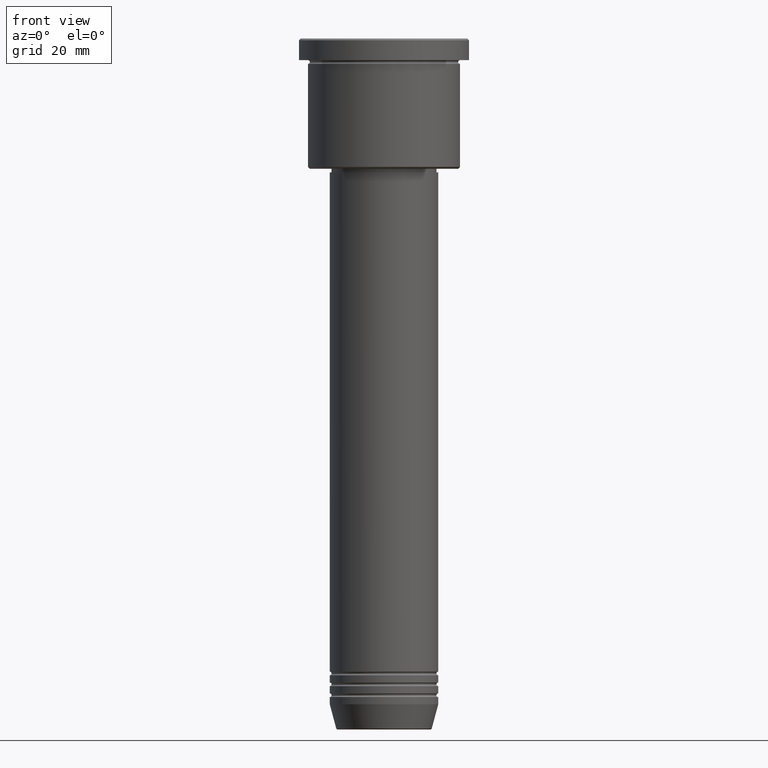
[diagram: clean part render]
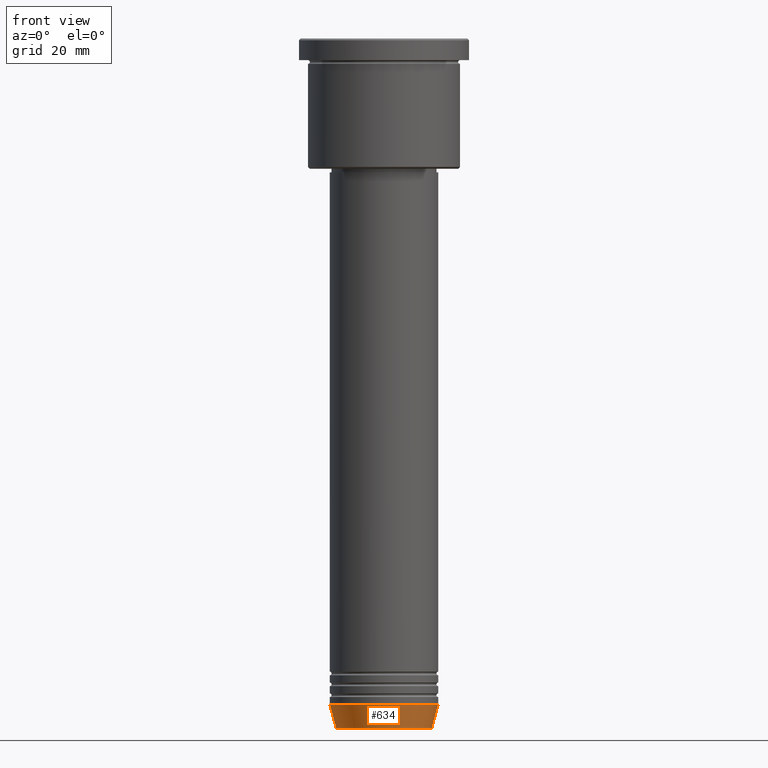
[diagram: same view with one face highlighted and labeled with its STEP entity id]
A machine part, front view. The second image highlights one B-rep face of the part: STEP entity #634.
In plain terms, the highlighted conical surface has half-angle 15 deg.
Its self-contained STEP definition (entity closure, byte-faithful):
#39 = CARTESIAN_POINT ( 'NONE',  ( -13.22365507213719305, 1.728200442216588583E-15, -190.6294095225512422 ) ) ;
#79 = VECTOR ( 'NONE', #748, 1000.000000000000000 ) ;
#99 = VERTEX_POINT ( 'NONE', #880 ) ;
#100 = AXIS2_PLACEMENT_3D ( 'NONE', #263, #146, #428 ) ;
#118 = AXIS2_PLACEMENT_3D ( 'NONE', #1143, #149, #1156 ) ;
#129 = ORIENTED_EDGE ( 'NONE', *, *, #1068, .T. ) ;
#146 = DIRECTION ( 'NONE',  ( -0.000000000000000000, -0.000000000000000000, 1.000000000000000000 ) ) ;
#149 = DIRECTION ( 'NONE',  ( -0.000000000000000000, -0.000000000000000000, 1.000000000000000000 ) ) ;
#161 = EDGE_LOOP ( 'NONE', ( #901, #757, #129, #990 ) ) ;
#213 = VERTEX_POINT ( 'NONE', #1123 ) ;
#220 = EDGE_CURVE ( 'NONE', #613, #99, #946, .T. ) ;
#227 = VERTEX_POINT ( 'NONE', #596 ) ;
#263 = CARTESIAN_POINT ( 'NONE',  ( 0.000000000000000000, 0.000000000000000000, -190.6294095225512422 ) ) ;
#428 = DIRECTION ( 'NONE',  ( 1.000000000000000000, 0.000000000000000000, 0.000000000000000000 ) ) ;
#433 = CIRCLE ( 'NONE', #118, 15.00000000000000000 ) ;
#596 = CARTESIAN_POINT ( 'NONE',  ( 15.00000000000000000, 0.000000000000000000, -184.0000000000000284 ) ) ;
#613 = VERTEX_POINT ( 'NONE', #39 ) ;
#634 = ADVANCED_FACE ( 'NONE', ( #856 ), #1091, .T. ) ;
#662 = CARTESIAN_POINT ( 'NONE',  ( 15.00000000000000000, 0.000000000000000000, -184.0000000000000284 ) ) ;
#671 = CARTESIAN_POINT ( 'NONE',  ( -15.00000000000000000, 1.836970198721029589E-15, -184.0000000000000284 ) ) ;
#734 = EDGE_CURVE ( 'NONE', #613, #213, #981, .T. ) ;
#748 = DIRECTION ( 'NONE',  ( 0.2588190451025213501, 0.000000000000000000, 0.9659258262890680902 ) ) ;
#757 = ORIENTED_EDGE ( 'NONE', *, *, #734, .T. ) ;
#759 = DIRECTION ( 'NONE',  ( -0.2588190451025213501, 3.169619151431772337E-17, 0.9659258262890680902 ) ) ;
#770 = CARTESIAN_POINT ( 'NONE',  ( 0.000000000000000000, 0.000000000000000000, -184.0000000000000284 ) ) ;
#841 = VECTOR ( 'NONE', #759, 1000.000000000000000 ) ;
#856 = FACE_OUTER_BOUND ( 'NONE', #161, .T. ) ;
#880 = CARTESIAN_POINT ( 'NONE',  ( -15.00000000000000000, 1.836970198721029589E-15, -184.0000000000000284 ) ) ;
#901 = ORIENTED_EDGE ( 'NONE', *, *, #220, .F. ) ;
#930 = LINE ( 'NONE', #662, #79 ) ;
#946 = LINE ( 'NONE', #671, #841 ) ;
#964 = DIRECTION ( 'NONE',  ( 1.000000000000000000, 0.000000000000000000, 0.000000000000000000 ) ) ;
#981 = CIRCLE ( 'NONE', #100, 13.22365507213719305 ) ;
#990 = ORIENTED_EDGE ( 'NONE', *, *, #1122, .F. ) ;
#1068 = EDGE_CURVE ( 'NONE', #213, #227, #930, .T. ) ;
#1091 = CONICAL_SURFACE ( 'NONE', #1096, 15.00000000000000000, 0.2617993877991500740 ) ;
#1096 = AXIS2_PLACEMENT_3D ( 'NONE', #770, #1127, #964 ) ;
#1122 = EDGE_CURVE ( 'NONE', #99, #227, #433, .T. ) ;
#1123 = CARTESIAN_POINT ( 'NONE',  ( 13.22365507213719305, 0.000000000000000000, -190.6294095225512422 ) ) ;
#1127 = DIRECTION ( 'NONE',  ( -0.000000000000000000, -0.000000000000000000, 1.000000000000000000 ) ) ;
#1143 = CARTESIAN_POINT ( 'NONE',  ( 0.000000000000000000, 0.000000000000000000, -184.0000000000000284 ) ) ;
#1156 = DIRECTION ( 'NONE',  ( 1.000000000000000000, 0.000000000000000000, 0.000000000000000000 ) ) ;